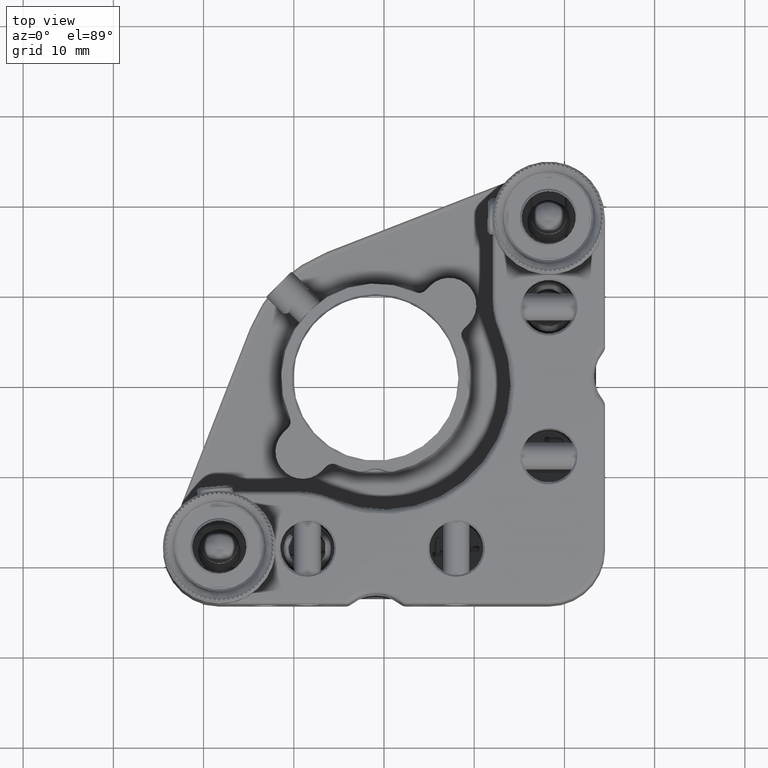
[diagram: clean part render]
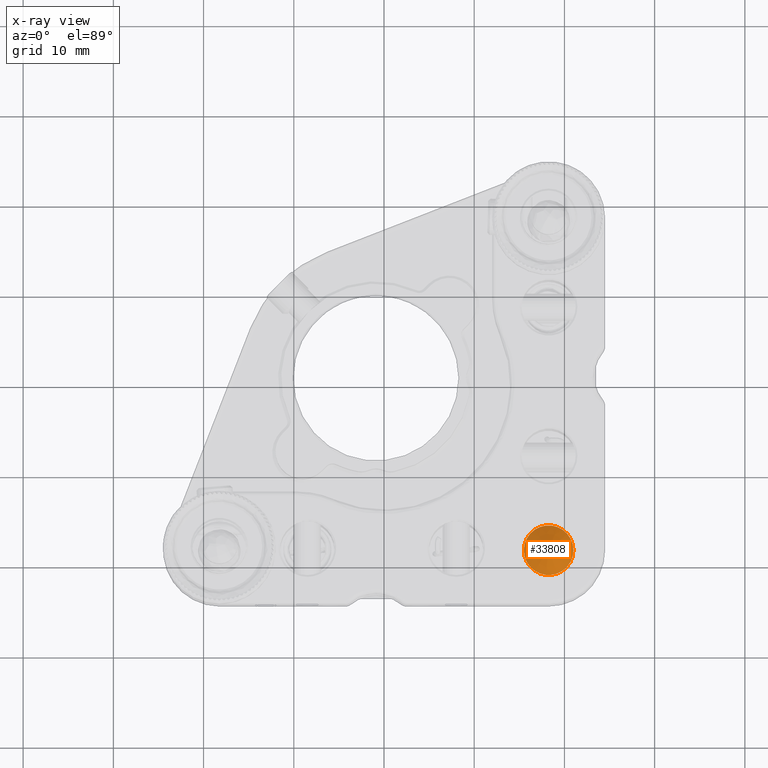
[diagram: x-ray — body ghosted, one internal face saturated and labeled with its STEP entity id]
A machine part, top view, then the same camera in x-ray: the body is ghosted and one INTERNAL B-rep face — a face not visible from any outside direction — is saturated and labeled: STEP entity #33808.
In plain terms, the highlighted conical surface has half-angle 45 deg.
Its self-contained STEP definition (entity closure, byte-faithful):
#10832 = AXIS2_PLACEMENT_3D ( 'NONE', #31457, #38187, #14734 ) ;
#11470 = FACE_OUTER_BOUND ( 'NONE', #27591, .T. ) ;
#12959 = CIRCLE ( 'NONE', #10832, 2.750000000025461411 ) ;
#14734 = DIRECTION ( 'NONE',  ( -1.000000000000000000, 0.000000000000000000, 0.000000000000000000 ) ) ;
#18614 = DIRECTION ( 'NONE',  ( 0.000000000000000000, 0.000000000000000000, -1.000000000000000000 ) ) ;
#20490 = EDGE_CURVE ( 'NONE', #21843, #21843, #12959, .T. ) ;
#21843 = VERTEX_POINT ( 'NONE', #42845 ) ;
#25955 = AXIS2_PLACEMENT_3D ( 'NONE', #39374, #18614, #31549 ) ;
#27591 = EDGE_LOOP ( 'NONE', ( #41414 ) ) ;
#31457 = CARTESIAN_POINT ( 'NONE',  ( 18.24999999999999645, -18.25000000000000000, -7.499999999993178790 ) ) ;
#31549 = DIRECTION ( 'NONE',  ( -1.000000000000000000, 0.000000000000000000, 0.000000000000000000 ) ) ;
#31652 = CONICAL_SURFACE ( 'NONE', #25955, 2.750000000025461411, 0.7853981633683427832 ) ;
#33808 = ADVANCED_FACE ( 'NONE', ( #11470 ), #31652, .F. ) ;
#38187 = DIRECTION ( 'NONE',  ( 0.000000000000000000, 0.000000000000000000, -1.000000000000000000 ) ) ;
#39374 = CARTESIAN_POINT ( 'NONE',  ( 18.24999999999999645, -18.25000000000000000, -7.499999999993178790 ) ) ;
#41414 = ORIENTED_EDGE ( 'NONE', *, *, #20490, .T. ) ;
#42845 = CARTESIAN_POINT ( 'NONE',  ( 15.49999999997453415, -18.25000000000000000, -7.499999999993178790 ) ) ;